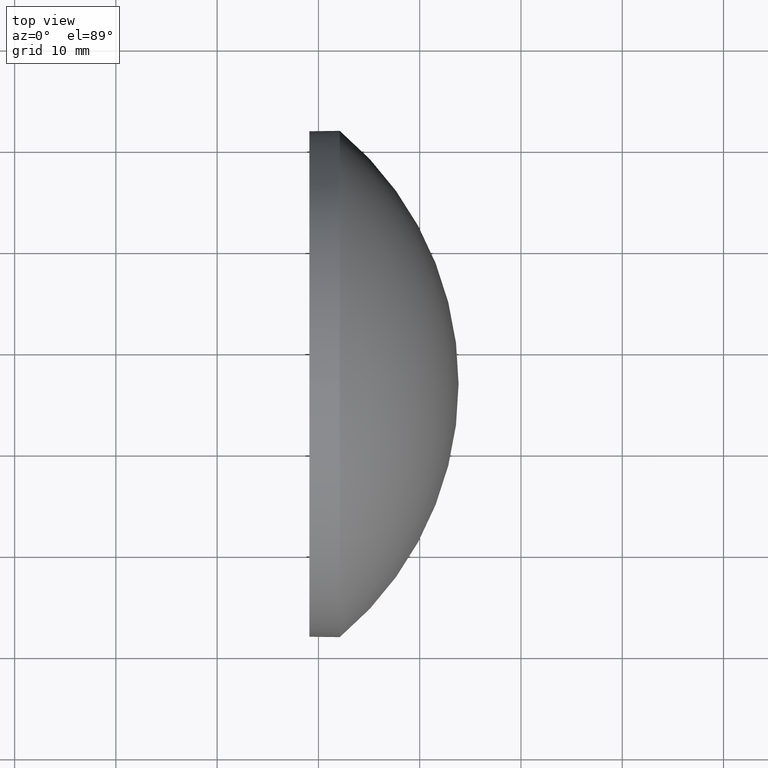
[diagram: clean part render]
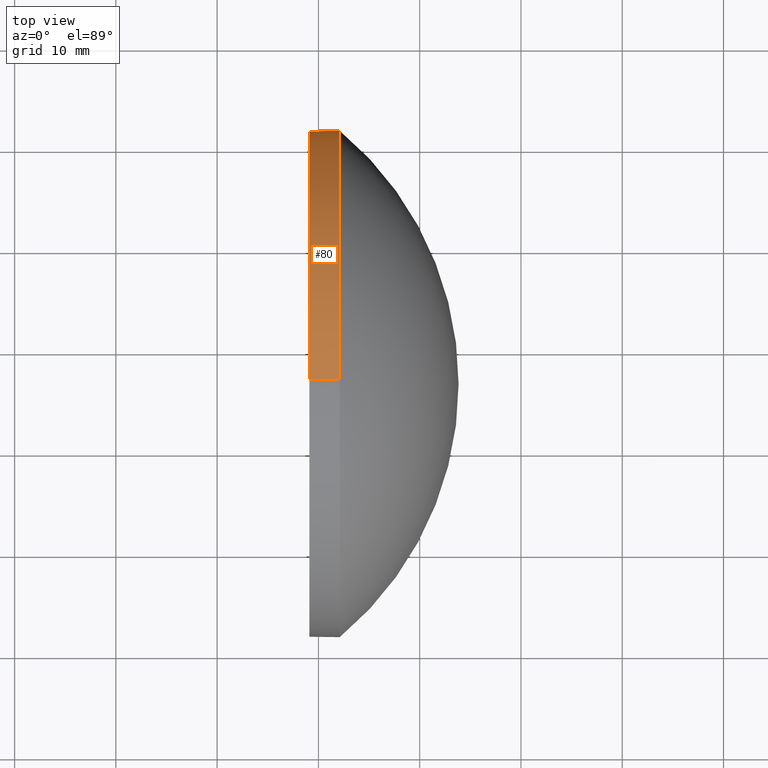
[diagram: same view with one face highlighted and labeled with its STEP entity id]
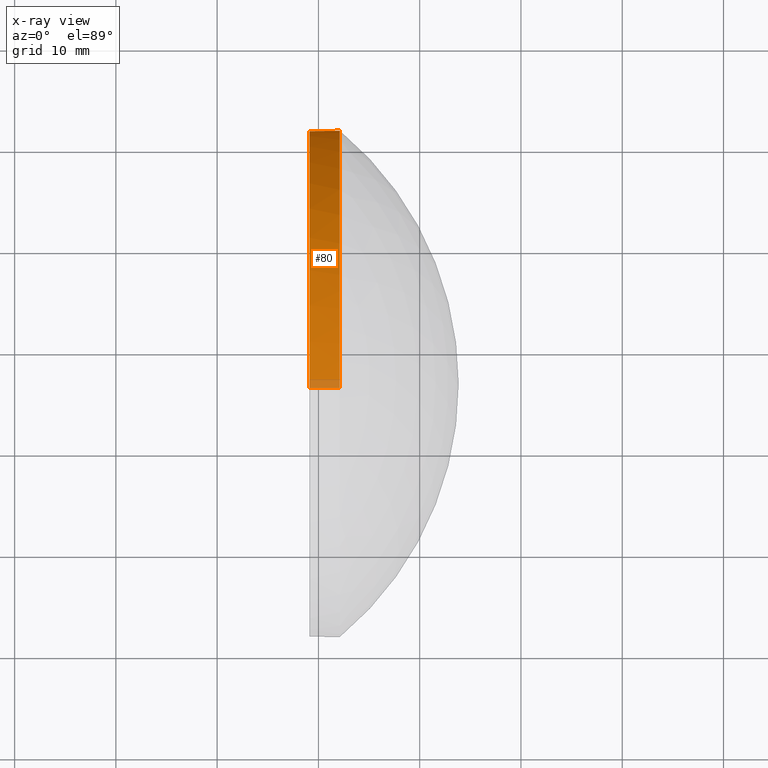
[diagram: x-ray of the same camera — body ghosted, the highlighted face saturated]
A machine part, top view. The second image highlights one B-rep face of the part: STEP entity #80.
The next image is the same camera in x-ray: the body ghosted, the highlighted face saturated — about 3% of this face is hidden behind the body in this view.
In plain terms, the highlighted cylindrical surface (partial cylindrical patch) has radius 25 mm, axis along (-1, -0, -0).
Its self-contained STEP definition (entity closure, byte-faithful):
#14 = VERTEX_POINT ( 'NONE', #125 ) ;
#17 = CARTESIAN_POINT ( 'NONE',  ( 442.1104221299683600, 106.6707544815266100, 0.0000000000000000000 ) ) ;
#19 = DIRECTION ( 'NONE',  ( -1.000000000000000000, -0.0000000000000000000, -0.0000000000000000000 ) ) ;
#24 = AXIS2_PLACEMENT_3D ( 'NONE', #73, #35, #175 ) ;
#25 = VECTOR ( 'NONE', #71, 1000.000000000000000 ) ;
#27 = ORIENTED_EDGE ( 'NONE', *, *, #138, .F. ) ;
#32 = CARTESIAN_POINT ( 'NONE',  ( 429.6881826927810800, 106.6707544815266100, 25.00000000000000700 ) ) ;
#35 = DIRECTION ( 'NONE',  ( -1.000000000000000000, -0.0000000000000000000, -0.0000000000000000000 ) ) ;
#45 = LINE ( 'NONE', #32, #25 ) ;
#46 = EDGE_CURVE ( 'NONE', #14, #84, #90, .T. ) ;
#48 = CARTESIAN_POINT ( 'NONE',  ( 442.1104221299683600, 131.6707544815266100, 0.0000000000000000000 ) ) ;
#50 = DIRECTION ( 'NONE',  ( 0.0000000000000000000, 0.0000000000000000000, 1.000000000000000000 ) ) ;
#59 = EDGE_CURVE ( 'NONE', #14, #67, #45, .T. ) ;
#63 = DIRECTION ( 'NONE',  ( -1.000000000000000000, -0.0000000000000000000, -0.0000000000000000000 ) ) ;
#65 = LINE ( 'NONE', #77, #93 ) ;
#67 = VERTEX_POINT ( 'NONE', #162 ) ;
#69 = CARTESIAN_POINT ( 'NONE',  ( 442.1104221299683600, 106.6707544815266100, 0.0000000000000000000 ) ) ;
#71 = DIRECTION ( 'NONE',  ( -1.000000000000000000, -0.0000000000000000000, -0.0000000000000000000 ) ) ;
#73 = CARTESIAN_POINT ( 'NONE',  ( 429.6881826927810800, 106.6707544815266100, 0.0000000000000000000 ) ) ;
#74 = CARTESIAN_POINT ( 'NONE',  ( 442.1104221299683600, 106.6707544815266100, -25.00000000000000700 ) ) ;
#77 = CARTESIAN_POINT ( 'NONE',  ( 429.6881826927810800, 106.6707544815266100, -25.00000000000000700 ) ) ;
#80 = ADVANCED_FACE ( 'NONE', ( #121 ), #141, .T. ) ;
#82 = ORIENTED_EDGE ( 'NONE', *, *, #118, .T. ) ;
#84 = VERTEX_POINT ( 'NONE', #48 ) ;
#85 = DIRECTION ( 'NONE',  ( -1.000000000000000000, -0.0000000000000000000, -0.0000000000000000000 ) ) ;
#87 = CARTESIAN_POINT ( 'NONE',  ( 439.1104221299683600, 106.6707544815266100, 0.0000000000000000000 ) ) ;
#90 = CIRCLE ( 'NONE', #136, 25.00000000000000700 ) ;
#93 = VECTOR ( 'NONE', #19, 1000.000000000000000 ) ;
#96 = VERTEX_POINT ( 'NONE', #117 ) ;
#103 = DIRECTION ( 'NONE',  ( 0.0000000000000000000, 0.0000000000000000000, 1.000000000000000000 ) ) ;
#109 = CIRCLE ( 'NONE', #140, 25.00000000000000700 ) ;
#110 = ORIENTED_EDGE ( 'NONE', *, *, #128, .T. ) ;
#111 = AXIS2_PLACEMENT_3D ( 'NONE', #69, #85, #103 ) ;
#117 = CARTESIAN_POINT ( 'NONE',  ( 439.1104221299683600, 106.6707544815266100, -25.00000000000000700 ) ) ;
#118 = EDGE_CURVE ( 'NONE', #84, #183, #151, .T. ) ;
#121 = FACE_OUTER_BOUND ( 'NONE', #145, .T. ) ;
#125 = CARTESIAN_POINT ( 'NONE',  ( 442.1104221299683600, 106.6707544815266100, 25.00000000000000700 ) ) ;
#128 = EDGE_CURVE ( 'NONE', #183, #96, #65, .T. ) ;
#136 = AXIS2_PLACEMENT_3D ( 'NONE', #17, #178, #50 ) ;
#138 = EDGE_CURVE ( 'NONE', #67, #96, #109, .T. ) ;
#140 = AXIS2_PLACEMENT_3D ( 'NONE', #87, #63, #165 ) ;
#141 = CYLINDRICAL_SURFACE ( 'NONE', #24, 25.00000000000000700 ) ;
#145 = EDGE_LOOP ( 'NONE', ( #82, #110, #27, #159, #169 ) ) ;
#151 = CIRCLE ( 'NONE', #111, 25.00000000000000700 ) ;
#159 = ORIENTED_EDGE ( 'NONE', *, *, #59, .F. ) ;
#162 = CARTESIAN_POINT ( 'NONE',  ( 439.1104221299683600, 106.6707544815266100, 25.00000000000000700 ) ) ;
#165 = DIRECTION ( 'NONE',  ( 0.0000000000000000000, 0.0000000000000000000, 1.000000000000000000 ) ) ;
#169 = ORIENTED_EDGE ( 'NONE', *, *, #46, .T. ) ;
#175 = DIRECTION ( 'NONE',  ( 0.0000000000000000000, 0.0000000000000000000, 1.000000000000000000 ) ) ;
#178 = DIRECTION ( 'NONE',  ( -1.000000000000000000, -0.0000000000000000000, -0.0000000000000000000 ) ) ;
#183 = VERTEX_POINT ( 'NONE', #74 ) ;